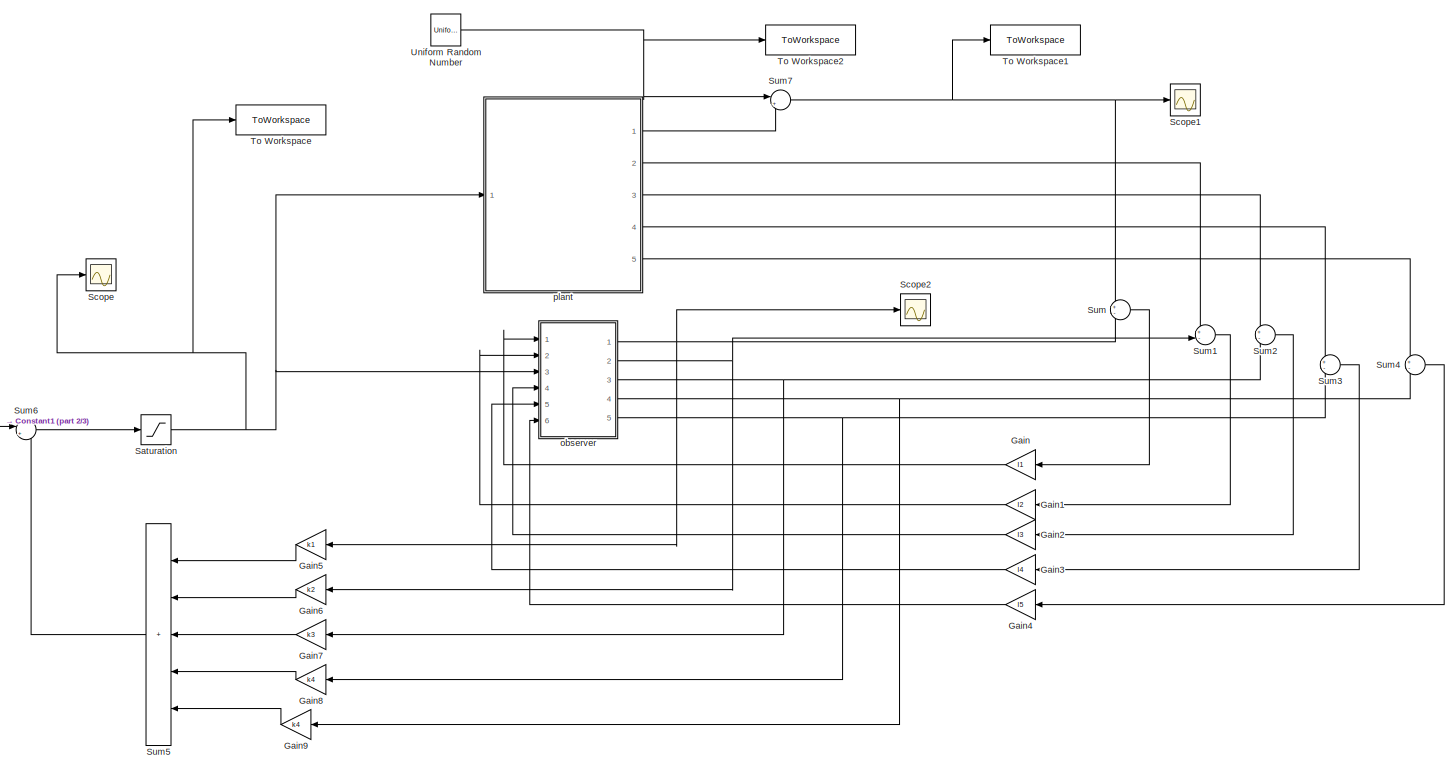
[diagram: root canvas - part 1/3, middle right region]
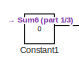
[diagram: root canvas - part 2/3, central region]
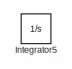
[diagram: root canvas - part 3/3, bottom left region]
MODEL slx_ebb6c30293c1
KIND model
CONFIG AbsTol = auto
CONFIG EnableMultiTasking = off
CONFIG FixedStep = 0.01
CONFIG MaxStep = auto
CONFIG MinStep = auto
CONFIG RelTol = 1e-3
CONFIG SampleTimeConstraint = Unconstrained
CONFIG SolverName = FixedStepAuto
CONFIG StartTime = 0.0
CONFIG StopTime = 20
BLOCK [Constant] Constant1
  Value = 0
BLOCK [Gain] Gain
  Gain = l1
  NameLocation = top
BLOCK [Gain] Gain1
  Gain = l2
  NameLocation = top
BLOCK [Gain] Gain2
  Gain = l3
  NameLocation = top
BLOCK [Gain] Gain3
  Gain = l4
  NameLocation = top
BLOCK [Gain] Gain4
  Gain = l5
  NameLocation = top
BLOCK [Gain] Gain5
  Gain = k1
  NameLocation = top
BLOCK [Gain] Gain6
  Gain = k2
  NameLocation = top
BLOCK [Gain] Gain7
  Gain = k3
  NameLocation = top
BLOCK [Gain] Gain8
  Gain = k4
  NameLocation = top
BLOCK [Gain] Gain9
  Gain = k4
  NameLocation = top
BLOCK [Integrator] Integrator5
  Ports = [1, 1]
BLOCK [Saturate] Saturation
  LowerLimit = -6
  UpperLimit = 6
BLOCK [Scope] Scope
  Floating = off
  NumInputPorts = 1
  Ports = [1]
  ScopeSpecificationString = Simulink.scopes.TimeScopeBlockCfg('CurrentConfiguration', extmgr.ConfigurationSet(extmgr.Configuration('Core','General UI',true),extmgr.Configuration('Core','Source UI',true),extmgr.Configuration('Sources','WiredSimulink',true,'DataLoggingVariableName','ScopeData7'),extmgr.Configuration('Visuals','Time Domain',true,'SerializedDisplays',{struct('MinYLimReal','-0.75018','MaxYLimReal','6.75002','YLab...<+1369ch>
BLOCK [Scope] Scope1
  Floating = off
  NumInputPorts = 1
  Ports = [1]
  ScopeSpecificationString = Simulink.scopes.TimeScopeBlockCfg('CurrentConfiguration', extmgr.ConfigurationSet(extmgr.Configuration('Core','General UI',true),extmgr.Configuration('Core','Source UI',true),extmgr.Configuration('Sources','WiredSimulink',true,'DataLoggingVariableName','ScopeData8'),extmgr.Configuration('Visuals','Time Domain',true,'SerializedDisplays',{struct('MinYLimReal','-0.44414','MaxYLimReal','0.52885','YLab...<+1404ch>
BLOCK [Scope] Scope2
  Floating = off
  NumInputPorts = 1
  Ports = [1]
  ScopeSpecificationString = Simulink.scopes.TimeScopeBlockCfg('CurrentConfiguration', extmgr.ConfigurationSet(extmgr.Configuration('Core','General UI',true),extmgr.Configuration('Core','Source UI',true),extmgr.Configuration('Sources','WiredSimulink',true,'DataLoggingVariableName','ScopeData1'),extmgr.Configuration('Visuals','Time Domain',true,'SerializedDisplays',{struct('MinYLimReal','-0.27688','MaxYLimReal','0.28572','YLab...<+1417ch>
BLOCK [Sum] Sum
  Inputs = +-
  Ports = [2, 1]
BLOCK [Sum] Sum1
  Inputs = +-
  Ports = [2, 1]
BLOCK [Sum] Sum2
  Inputs = +-
  Ports = [2, 1]
BLOCK [Sum] Sum3
  Inputs = +-
  Ports = [2, 1]
BLOCK [Sum] Sum4
  Inputs = +-
  Ports = [2, 1]
BLOCK [Sum] Sum5
  IconShape = rectangular
  Inputs = +++++
  NameLocation = top
  Ports = [5, 1]
BLOCK [Sum] Sum6
  Inputs = |+-
  Ports = [2, 1]
BLOCK [Sum] Sum7
  Inputs = |++
  Ports = [2, 1]
BLOCK [ToWorkspace] To Workspace
  FixptAsFi = on
  MaxDataPoints = inf
  Ports = [1]
  SampleTime = -1
  VariableName = eff
BLOCK [ToWorkspace] To Workspace1
  FixptAsFi = on
  MaxDataPoints = inf
  Ports = [1]
  SampleTime = -1
  VariableName = thh
BLOCK [ToWorkspace] To Workspace2
  FixptAsFi = on
  MaxDataPoints = inf
  Ports = [1]
  SampleTime = -1
  VariableName = noi
BLOCK [UniformRandomNumber] Uniform Random Number
  Maximum = 0.1
  Minimum = -0.1
  SampleTime = 0.01
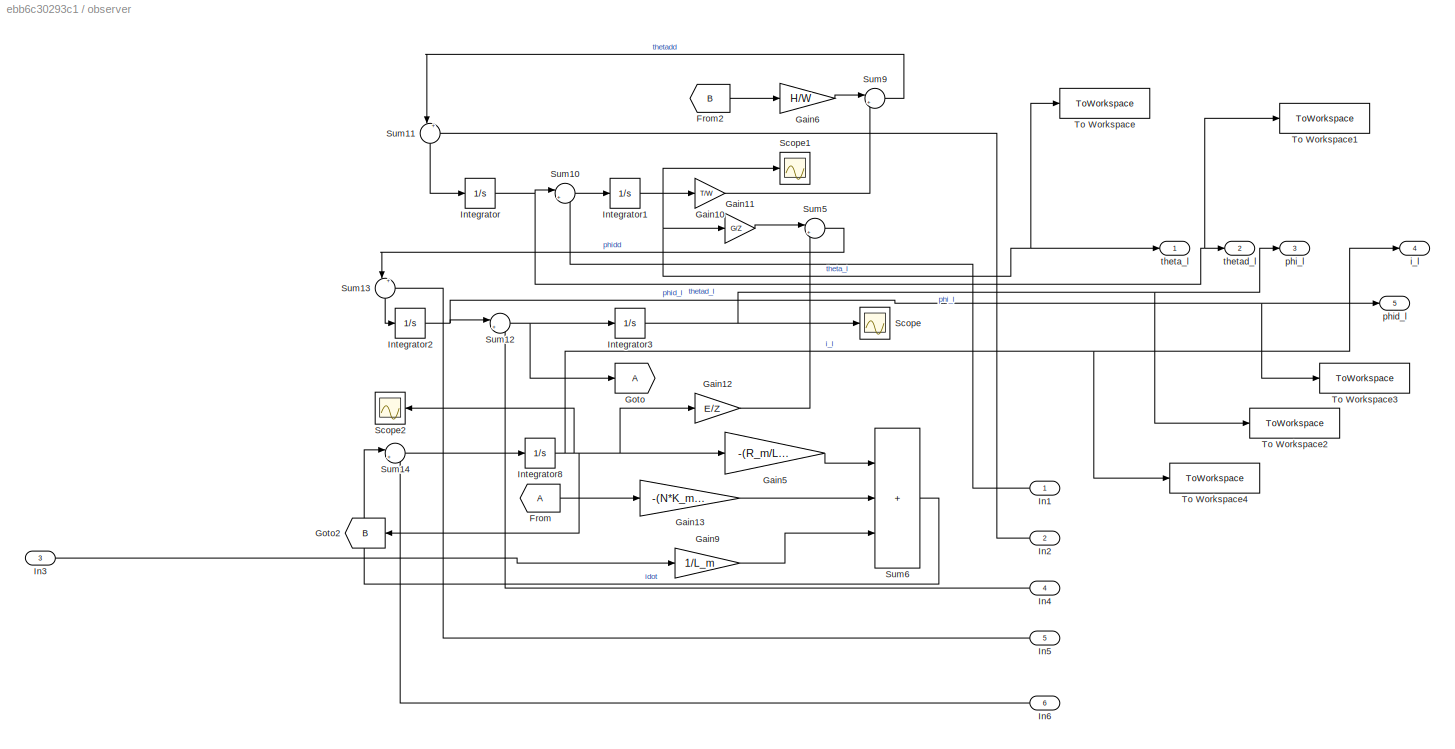
BLOCK [SubSystem] observer
  Ports = [6, 5]
  RequestExecContextInheritance = off
BLOCK [From] observer/From
BLOCK [From] observer/From2
  GotoTag = B
BLOCK [Gain] observer/Gain10
  Gain = T/W
BLOCK [Gain] observer/Gain11
  Gain = G/Z
BLOCK [Gain] observer/Gain12
  Gain = E/Z
BLOCK [Gain] observer/Gain13
  Gain = -(N*K_m)/L_m
BLOCK [Gain] observer/Gain5
  Gain = -(R_m/L_m)
BLOCK [Gain] observer/Gain6
  Gain = H/W
BLOCK [Gain] observer/Gain9
  Gain = 1/L_m
BLOCK [Goto] observer/Goto
BLOCK [Goto] observer/Goto2
  GotoTag = B
  NameLocation = top
BLOCK [Inport] observer/In1
BLOCK [Inport] observer/In2
  Port = 2
BLOCK [Inport] observer/In3
  Port = 3
BLOCK [Inport] observer/In4
  Port = 4
BLOCK [Inport] observer/In5
  Port = 5
BLOCK [Inport] observer/In6
  Port = 6
BLOCK [Integrator] observer/Integrator
  Ports = [1, 1]
BLOCK [Integrator] observer/Integrator1
  Ports = [1, 1]
BLOCK [Integrator] observer/Integrator2
  Ports = [1, 1]
BLOCK [Integrator] observer/Integrator3
  Ports = [1, 1]
BLOCK [Integrator] observer/Integrator8
  Ports = [1, 1]
BLOCK [Scope] observer/Scope
  Floating = off
  NumInputPorts = 1
  Ports = [1]
  ScopeSpecificationString = Simulink.scopes.TimeScopeBlockCfg('CurrentConfiguration', extmgr.ConfigurationSet(extmgr.Configuration('Core','General UI',true),extmgr.Configuration('Core','Source UI',true),extmgr.Configuration('Sources','WiredSimulink',true,'DataLoggingVariableName','ScopeData1'),extmgr.Configuration('Visuals','Time Domain',true,'SerializedDisplays',{struct('MinYLimReal','-37.8283','MaxYLimReal','4.29992','YLab...<+1419ch>
BLOCK [Scope] observer/Scope1
  Floating = off
  NumInputPorts = 1
  Ports = [1]
  ScopeSpecificationString = Simulink.scopes.TimeScopeBlockCfg('CurrentConfiguration', extmgr.ConfigurationSet(extmgr.Configuration('Core','General UI',true),extmgr.Configuration('Core','Source UI',true),extmgr.Configuration('Sources','WiredSimulink',true,'DataLoggingVariableName','ScopeData6'),extmgr.Configuration('Visuals','Time Domain',true,'SerializedDisplays',{struct('MinYLimReal','-0.21997','MaxYLimReal','0.23094','YLab...<+1421ch>
BLOCK [Scope] observer/Scope2
  Floating = off
  NameLocation = top
  NumInputPorts = 1
  Ports = [1]
  ScopeSpecificationString = Simulink.scopes.TimeScopeBlockCfg('CurrentConfiguration', extmgr.ConfigurationSet(extmgr.Configuration('Core','General UI',true),extmgr.Configuration('Core','Source UI',true),extmgr.Configuration('Sources','WiredSimulink',true,'DataLoggingVariableName','ScopeData2'),extmgr.Configuration('Visuals','Time Domain',true,'SerializedDisplays',{struct('MinYLimReal','-0.06077','MaxYLimReal','0.09374','YLab...<+1360ch>
BLOCK [Sum] observer/Sum10
  Inputs = |++
  Ports = [2, 1]
BLOCK [Sum] observer/Sum11
  Inputs = |++
  NameLocation = left
  Ports = [2, 1]
BLOCK [Sum] observer/Sum12
  Inputs = |++
  Ports = [2, 1]
BLOCK [Sum] observer/Sum13
  Inputs = |++
  NameLocation = left
  Ports = [2, 1]
BLOCK [Sum] observer/Sum14
  Inputs = |++
  Ports = [2, 1]
BLOCK [Sum] observer/Sum5
  Inputs = |++
  Ports = [2, 1]
BLOCK [Sum] observer/Sum6
  IconShape = rectangular
  Inputs = +++
  Ports = [3, 1]
BLOCK [Sum] observer/Sum9
  Inputs = |++
  Ports = [2, 1]
BLOCK [ToWorkspace] observer/To Workspace
  FixptAsFi = on
  MaxDataPoints = inf
  Ports = [1]
  SampleTime = -1
  VariableName = th
BLOCK [ToWorkspace] observer/To Workspace1
  FixptAsFi = on
  MaxDataPoints = inf
  Ports = [1]
  SampleTime = -1
  VariableName = thd
BLOCK [ToWorkspace] observer/To Workspace2
  FixptAsFi = on
  MaxDataPoints = inf
  Ports = [1]
  SampleTime = -1
  VariableName = phi
BLOCK [ToWorkspace] observer/To Workspace3
  FixptAsFi = on
  MaxDataPoints = inf
  Ports = [1]
  SampleTime = -1
  VariableName = phid
BLOCK [ToWorkspace] observer/To Workspace4
  FixptAsFi = on
  MaxDataPoints = inf
  Ports = [1]
  SampleTime = -1
  VariableName = i
BLOCK [Outport] observer/i_l
  Port = 4
BLOCK [Outport] observer/phi_l
  Port = 3
BLOCK [Outport] observer/phid_l
  Port = 5
BLOCK [Outport] observer/theta_l
BLOCK [Outport] observer/thetad_l
  Port = 2
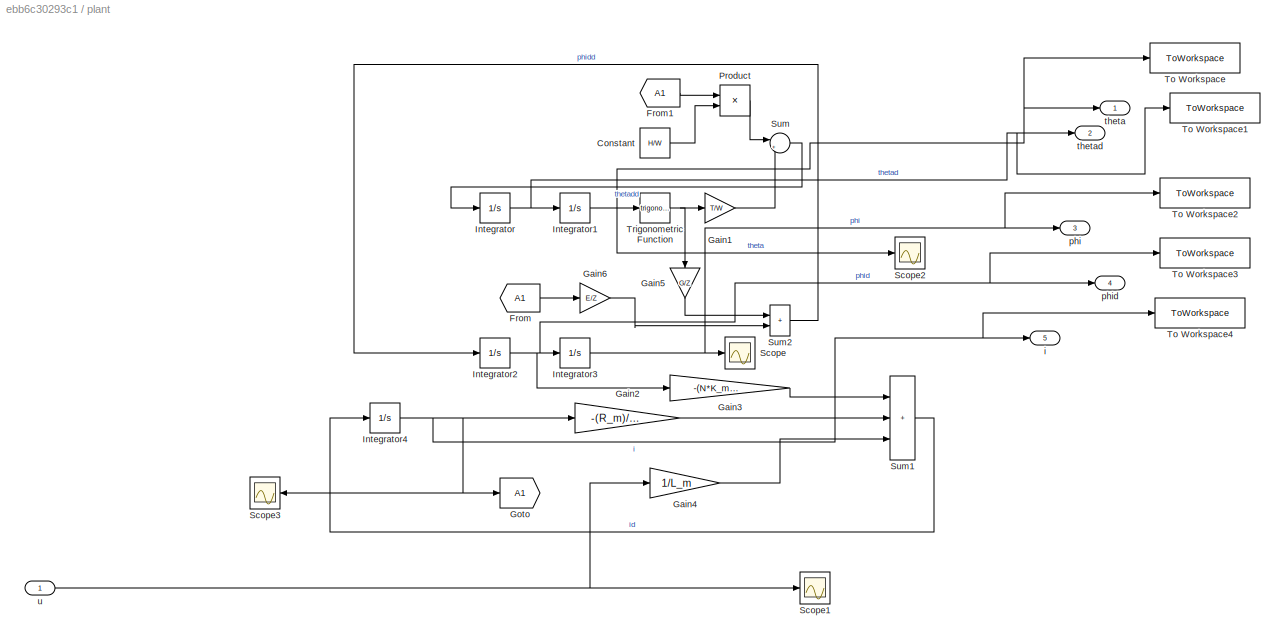
BLOCK [SubSystem] plant
  Ports = [1, 5]
  RequestExecContextInheritance = off
BLOCK [Constant] plant/Constant
  Value = H/W
BLOCK [From] plant/From
  GotoTag = A1
BLOCK [From] plant/From1
  GotoTag = A1
BLOCK [Gain] plant/Gain1
  Gain = T/W
BLOCK [Gain] plant/Gain2
  Gain = -(R_m)/L_m
BLOCK [Gain] plant/Gain3
  Gain = -(N*K_m/L_m)
BLOCK [Gain] plant/Gain4
  Gain = 1/L_m
BLOCK [Gain] plant/Gain5
  Gain = G/Z
  NameLocation = left
BLOCK [Gain] plant/Gain6
  Gain = E/Z
BLOCK [Goto] plant/Goto
  GotoTag = A1
BLOCK [Integrator] plant/Integrator
  Ports = [1, 1]
BLOCK [Integrator] plant/Integrator1
  InitialCondition = 20*pi/180
  Ports = [1, 1]
BLOCK [Integrator] plant/Integrator2
  Ports = [1, 1]
BLOCK [Integrator] plant/Integrator3
  Ports = [1, 1]
BLOCK [Integrator] plant/Integrator4
  Ports = [1, 1]
BLOCK [Product] plant/Product
  Ports = [2, 1]
BLOCK [Scope] plant/Scope
  Floating = off
  NumInputPorts = 1
  Ports = [1]
  ScopeSpecificationString = Simulink.scopes.TimeScopeBlockCfg('CurrentConfiguration', extmgr.ConfigurationSet(extmgr.Configuration('Core','General UI',true),extmgr.Configuration('Core','Source UI',true),extmgr.Configuration('Sources','WiredSimulink',true,'DataLoggingVariableName','ScopeData3'),extmgr.Configuration('Visuals','Time Domain',true,'SerializedDisplays',{struct('MinYLimReal','-11.49543','MaxYLimReal','15.20624','YL...<+1423ch>
BLOCK [Scope] plant/Scope1
  Floating = off
  NumInputPorts = 1
  Ports = [1]
  ScopeSpecificationString = Simulink.scopes.TimeScopeBlockCfg('CurrentConfiguration', extmgr.ConfigurationSet(extmgr.Configuration('Core','General UI',true),extmgr.Configuration('Core','Source UI',true),extmgr.Configuration('Sources','WiredSimulink',true,'DataLoggingVariableName','ScopeData4'),extmgr.Configuration('Visuals','Time Domain',true,'SerializedDisplays',{struct('MinYLimReal','-1.25','MaxYLimReal','1.25','YLabelReal...<+1350ch>
BLOCK [Scope] plant/Scope2
  Floating = off
  NumInputPorts = 1
  Ports = [1]
  ScopeSpecificationString = Simulink.scopes.TimeScopeBlockCfg('CurrentConfiguration', extmgr.ConfigurationSet(extmgr.Configuration('Core','General UI',true),extmgr.Configuration('Core','Source UI',true),extmgr.Configuration('Sources','WiredSimulink',true,'DataLoggingVariableName','ScopeData5'),extmgr.Configuration('Visuals','Time Domain',true,'SerializedDisplays',{struct('MinYLimReal','-0.32368','MaxYLimReal','0.42382','YLab...<+1406ch>
BLOCK [Scope] plant/Scope3
  Floating = off
  NameLocation = top
  NumInputPorts = 1
  Ports = [1]
  ScopeSpecificationString = Simulink.scopes.TimeScopeBlockCfg('CurrentConfiguration', extmgr.ConfigurationSet(extmgr.Configuration('Core','General UI',true),extmgr.Configuration('Core','Source UI',true),extmgr.Configuration('Sources','WiredSimulink',true),extmgr.Configuration('Visuals','Time Domain',true,'SerializedDisplays',{struct('MinYLimReal','-0.06859','MaxYLimReal','0.05111','YLabelReal','','MinYLimMag','0.00000','MaxY...<+1321ch>
BLOCK [Sum] plant/Sum
  Inputs = |++
  Ports = [2, 1]
BLOCK [Sum] plant/Sum1
  IconShape = rectangular
  Inputs = +++
  Ports = [3, 1]
BLOCK [Sum] plant/Sum2
  IconShape = rectangular
  Ports = [2, 1]
BLOCK [ToWorkspace] plant/To Workspace
  FixptAsFi = on
  MaxDataPoints = inf
  Ports = [1]
  SampleTime = -1
  VariableName = th_o
BLOCK [ToWorkspace] plant/To Workspace1
  FixptAsFi = on
  MaxDataPoints = inf
  Ports = [1]
  SampleTime = -1
  VariableName = thd_o
BLOCK [ToWorkspace] plant/To Workspace2
  FixptAsFi = on
  MaxDataPoints = inf
  Ports = [1]
  SampleTime = -1
  VariableName = phi_o
BLOCK [ToWorkspace] plant/To Workspace3
  FixptAsFi = on
  MaxDataPoints = inf
  Ports = [1]
  SampleTime = -1
  VariableName = phid_o
BLOCK [ToWorkspace] plant/To Workspace4
  FixptAsFi = on
  MaxDataPoints = inf
  Ports = [1]
  SampleTime = -1
  VariableName = i_o
BLOCK [Trigonometry] plant/Trigonometric Function
  Ports = [1, 1]
BLOCK [Outport] plant/i
  Port = 5
BLOCK [Outport] plant/phi
  Port = 3
BLOCK [Outport] plant/phid
  Port = 4
BLOCK [Outport] plant/theta
BLOCK [Outport] plant/thetad
  Port = 2
BLOCK [Inport] plant/u
LINE Constant1:1 -> Sum6:1
LINE Gain1:1 -> observer:2
LINE Gain2:1 -> observer:4
LINE Gain3:1 -> observer:5
LINE Gain4:1 -> observer:6
LINE Gain5:1 -> Sum5:1
LINE Gain6:1 -> Sum5:2
LINE Gain7:1 -> Sum5:3
LINE Gain8:1 -> Sum5:4
LINE Gain9:1 -> Sum5:5
LINE Gain:1 -> observer:1
NET Saturation:1 -> Scope:1, To Workspace:1, observer:3, plant:1
LINE Sum1:1 -> Gain1:1
LINE Sum2:1 -> Gain2:1
LINE Sum3:1 -> Gain3:1
LINE Sum4:1 -> Gain4:1
LINE Sum5:1 -> Sum6:2
LINE Sum6:1 -> Saturation:1
NET Sum7:1 -> Scope1:1, Sum:1, To Workspace1:1
LINE Sum:1 -> Gain:1
NET Uniform Random Number:1 -> Sum7:1, To Workspace2:1
LINE observer/From2:1 -> observer/Gain6:1
LINE observer/From:1 -> observer/Gain13:1
LINE observer/Gain10:1 -> observer/Sum9:2
LINE observer/Gain11:1 -> observer/Sum5:1
LINE observer/Gain12:1 -> observer/Sum5:2
LINE observer/Gain13:1 -> observer/Sum6:2
LINE observer/Gain5:1 -> observer/Sum6:1
LINE observer/Gain6:1 -> observer/Sum9:1
LINE observer/Gain9:1 -> observer/Sum6:3
LINE observer/In1:1 -> observer/Sum10:2
LINE observer/In2:1 -> observer/Sum11:2
LINE observer/In3:1 -> observer/Gain9:1
LINE observer/In4:1 -> observer/Sum12:2
LINE observer/In5:1 -> observer/Sum13:2
LINE observer/In6:1 -> observer/Sum14:2
NET observer/Integrator1:1 -> observer/Gain10:1, observer/Gain11:1, observer/Scope1:1, observer/To Workspace:1, observer/theta_l:1
NET observer/Integrator2:1 -> observer/Sum12:1, observer/To Workspace3:1, observer/phid_l:1
NET observer/Integrator3:1 -> observer/Scope:1, observer/To Workspace2:1, observer/phi_l:1
NET observer/Integrator8:1 -> observer/Gain12:1, observer/Gain5:1, observer/Goto2:1, observer/Scope2:1, observer/To Workspace4:1, observer/i_l:1
NET observer/Integrator:1 -> observer/Sum10:1, observer/To Workspace1:1, observer/thetad_l:1
LINE observer/Sum10:1 -> observer/Integrator1:1
LINE observer/Sum11:1 -> observer/Integrator:1
NET observer/Sum12:1 -> observer/Goto:1, observer/Integrator3:1
LINE observer/Sum13:1 -> observer/Integrator2:1
LINE observer/Sum14:1 -> observer/Integrator8:1
LINE observer/Sum5:1 -> observer/Sum13:1
LINE observer/Sum6:1 -> observer/Sum14:1
LINE observer/Sum9:1 -> observer/Sum11:1
NET observer:1 -> Gain5:1, Scope2:1, Sum:2
NET observer:2 -> Gain6:1, Sum1:2
NET observer:3 -> Gain7:1, Sum2:2
NET observer:4 -> Gain9:1, Sum4:2
NET observer:5 -> Gain8:1, Sum3:2
LINE plant/Constant:1 -> plant/Product:2
LINE plant/From1:1 -> plant/Product:1
LINE plant/From:1 -> plant/Gain6:1
LINE plant/Gain1:1 -> plant/Sum:2
LINE plant/Gain2:1 -> plant/Sum1:2
LINE plant/Gain3:1 -> plant/Sum1:1
LINE plant/Gain4:1 -> plant/Sum1:3
LINE plant/Gain5:1 -> plant/Sum2:1
LINE plant/Gain6:1 -> plant/Sum2:2
NET plant/Integrator1:1 -> plant/Scope2:1, plant/To Workspace:1, plant/Trigonometric Function:1, plant/theta:1
NET plant/Integrator2:1 -> plant/Gain3:1, plant/Integrator3:1, plant/To Workspace3:1, plant/phid:1
NET plant/Integrator3:1 -> plant/Scope:1, plant/To Workspace2:1, plant/phi:1
NET plant/Integrator4:1 -> plant/Gain2:1, plant/Goto:1, plant/Scope3:1, plant/To Workspace4:1, plant/i:1
NET plant/Integrator:1 -> plant/Integrator1:1, plant/To Workspace1:1, plant/thetad:1
LINE plant/Product:1 -> plant/Sum:1
LINE plant/Sum1:1 -> plant/Integrator4:1
LINE plant/Sum2:1 -> plant/Integrator2:1
LINE plant/Sum:1 -> plant/Integrator:1
NET plant/Trigonometric Function:1 -> plant/Gain1:1, plant/Gain5:1
NET plant/u:1 -> plant/Gain4:1, plant/Scope1:1
LINE plant:1 -> Sum7:2
LINE plant:2 -> Sum1:1
LINE plant:3 -> Sum2:1
LINE plant:4 -> Sum3:1
LINE plant:5 -> Sum4:1
note: NET lines group one-source signal fan-out (src -> all destinations, sorted); 1:1 wires keep LINE
